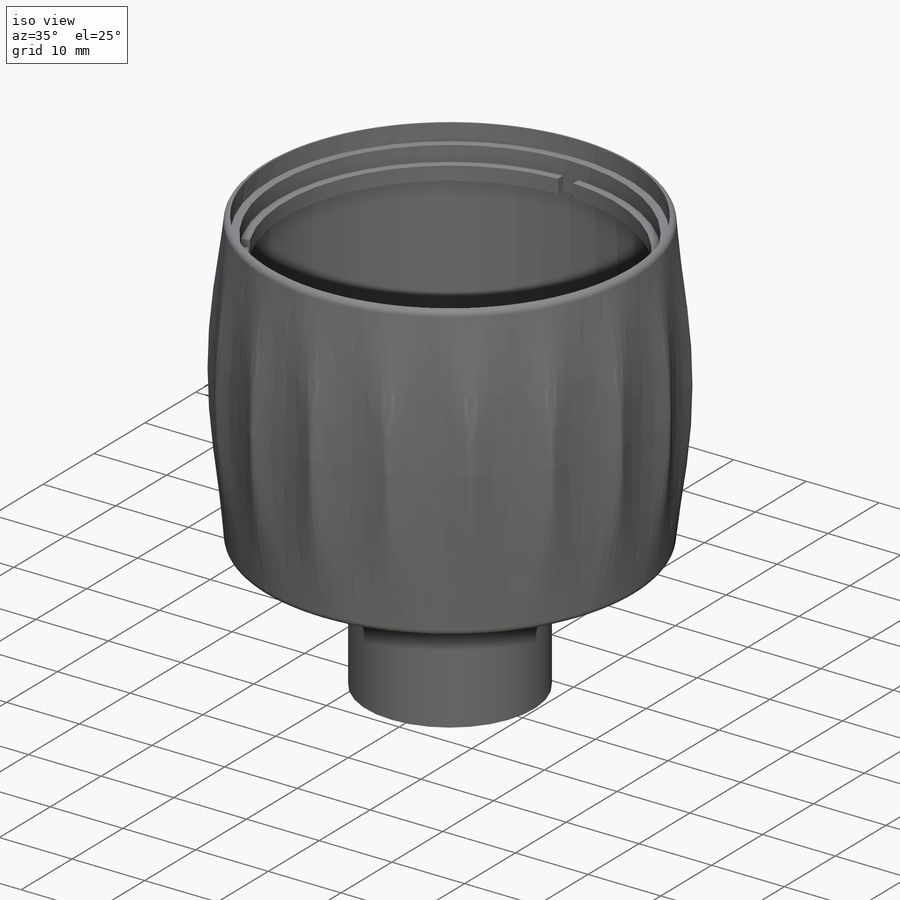
[diagram: iso view]
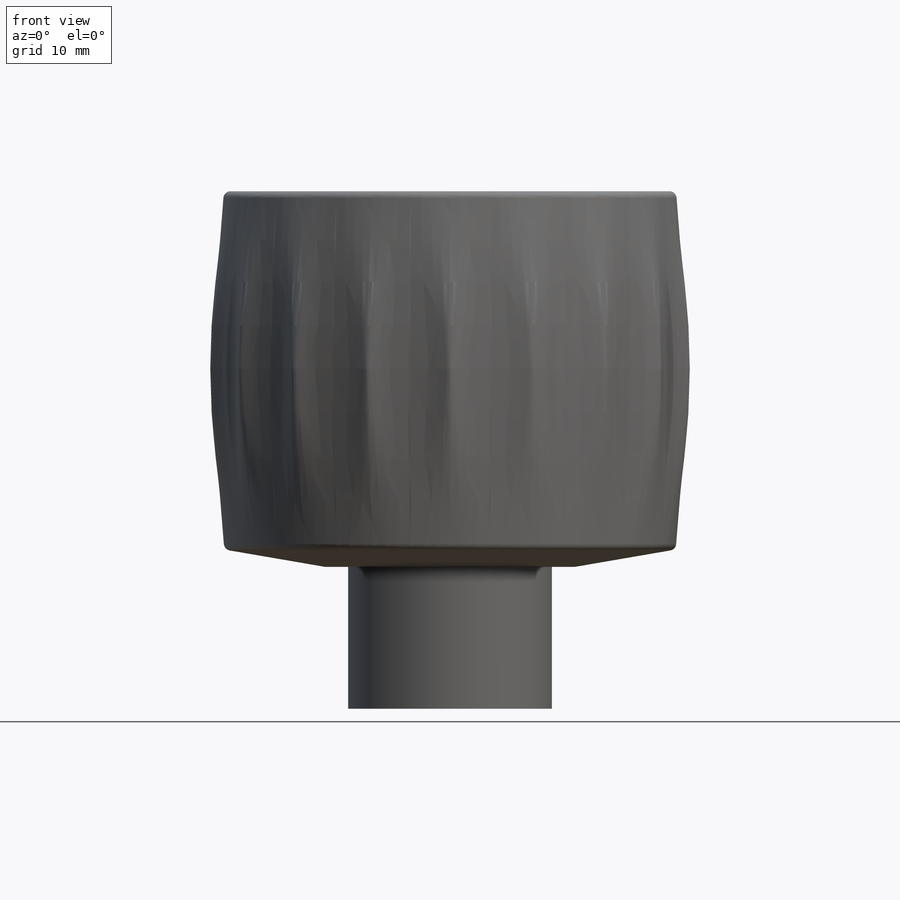
[diagram: front view]
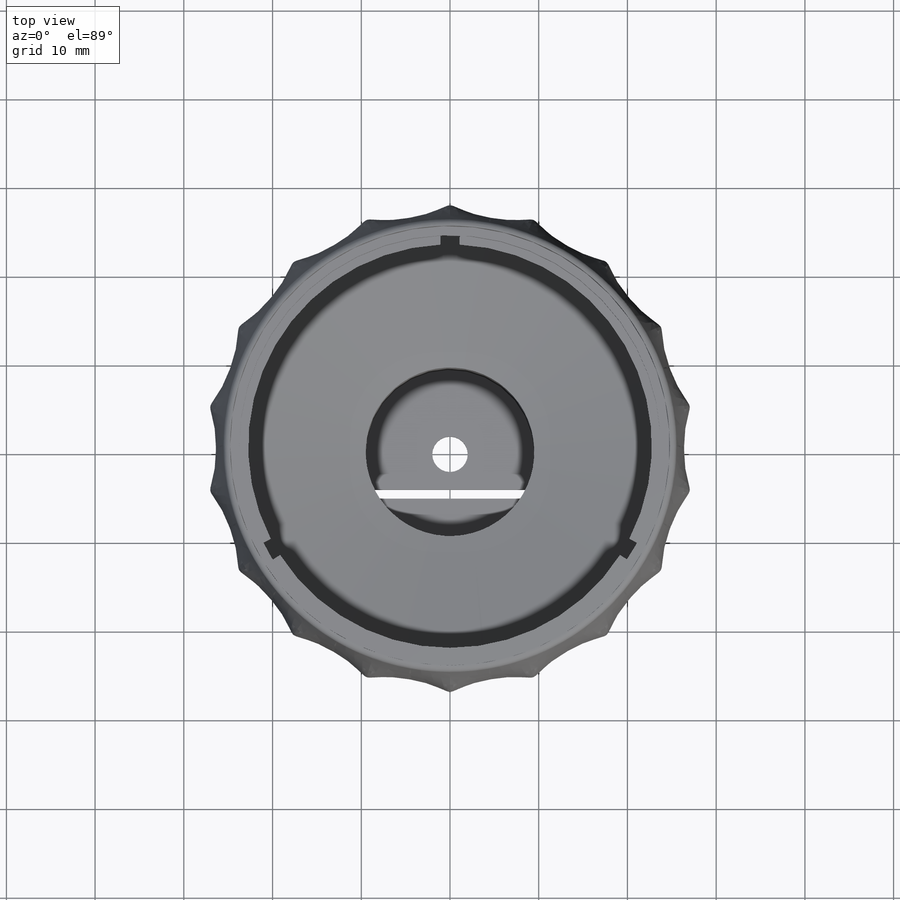
[diagram: top view]
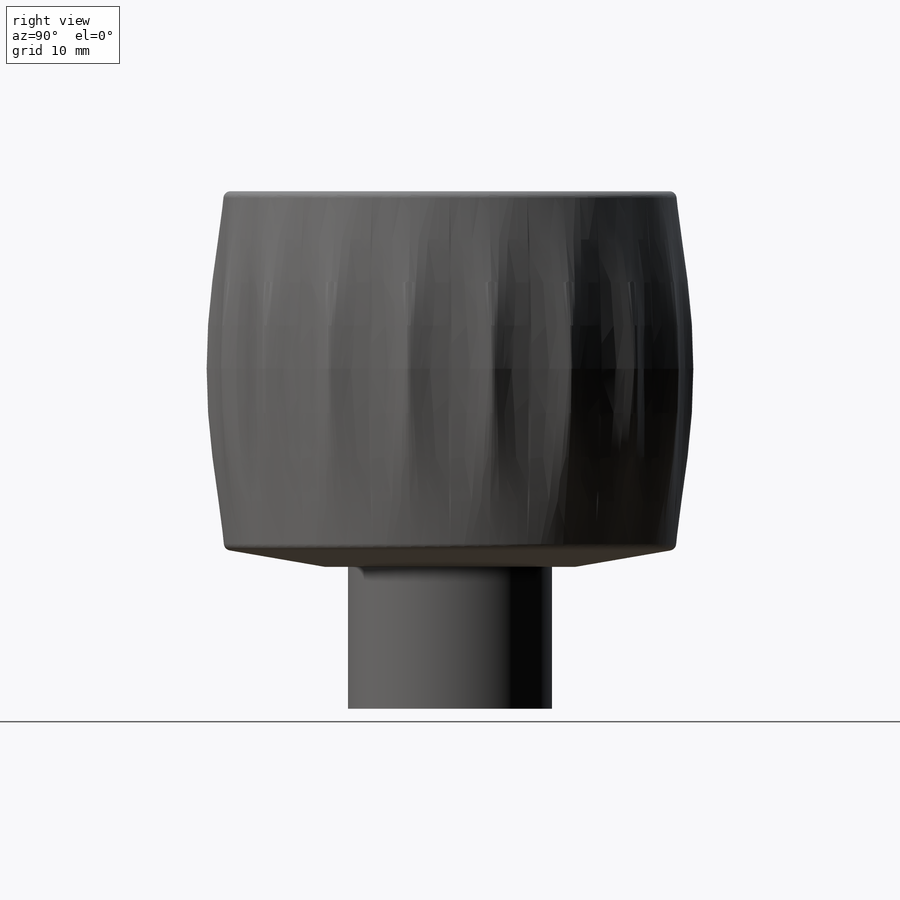
[diagram: right view]
SOLIDWORKS PART (.sldprt)
format: sldprt  version: not decoded by parser v0  size: 1,684,480 bytes
history: native  units: mm
features: sketch x9, cut_extrude x6, plane x3, extrude x3, material x1, pattern_circular x1 (+11 scaffold rows collapsed)
feature tree (34):
  scaffold x11  (default folders/planes/origin — collapsed)
  material  "Material <not specified>"
  plane  "Plane1"
  sketch  "Sketch1"
  extrude  "Boss-Extrude1"  [1 undecoded]
  sketch  "Sketch2"  dims[D1=23.0mm]
  extrude  "Boss-Extrude2"  Depth=16mm
  sketch  "Sketch3"  dims[D1=19.0mm]
  cut_extrude  "Cut-Extrude1"  Depth=2mm
  sketch  "Sketch4"  dims[D1=0.0mm]
  cut_extrude  "Cut-Extrude2"  Depth=2mm
  plane  "Plane2"
  plane  "Plane3"  Offset=2.3mm
  sketch  "Sketch5"  dims[D1=50.0mm D2=2.25mm]
  extrude  "Boss-Extrude3"  Depth=4mm
  sketch  "Sketch7"  dims[D1=1.0mm]
  cut_extrude  "Cut-Extrude3"  Depth=2.1mm
  sketch  "Sketch8"  dims[D1=2.2mm]
  cut_extrude  "Cut-Extrude4"  [1 undecoded]
  pattern_circular  "CirPattern1"  Count=3 Angle=360deg
  sketch  "Sketch10"  dims[D1=4.0mm]
  cut_extrude  "Cut-Extrude5"  [1 undecoded]
  sketch  "Sketch11"  dims[D2=1.0mm D3=4.0mm D1=2.0mm]
  cut_extrude  "Cut-Extrude6"  [1 undecoded]
decode coverage: 14 of 19 modeling features carry decoded parameters
note: 4 parameter values undecoded
summary: no parameter record found for 4 features
note: suppression state not decoded; provenance and decode notes live in map.json
